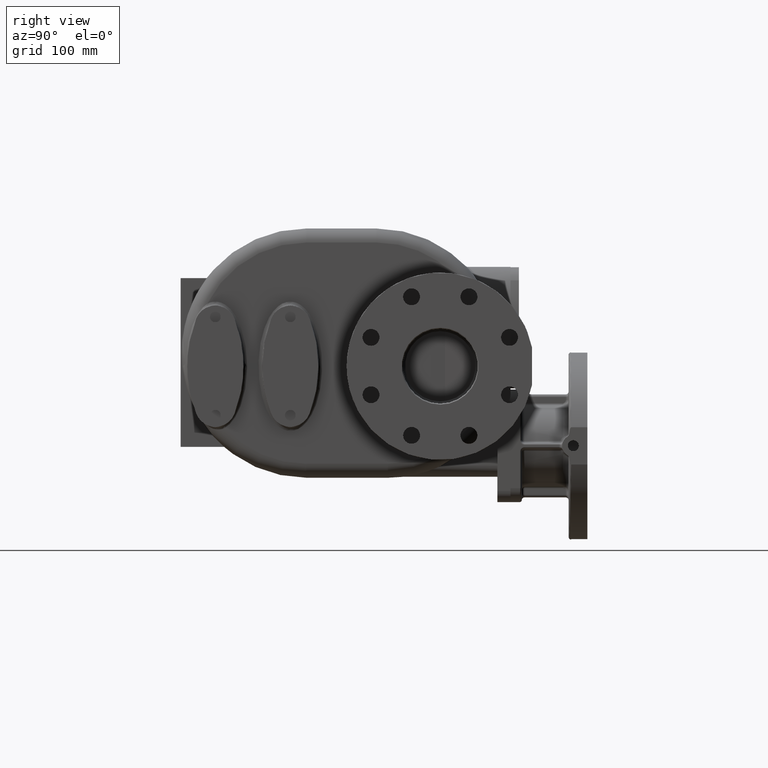
[diagram: clean part render]
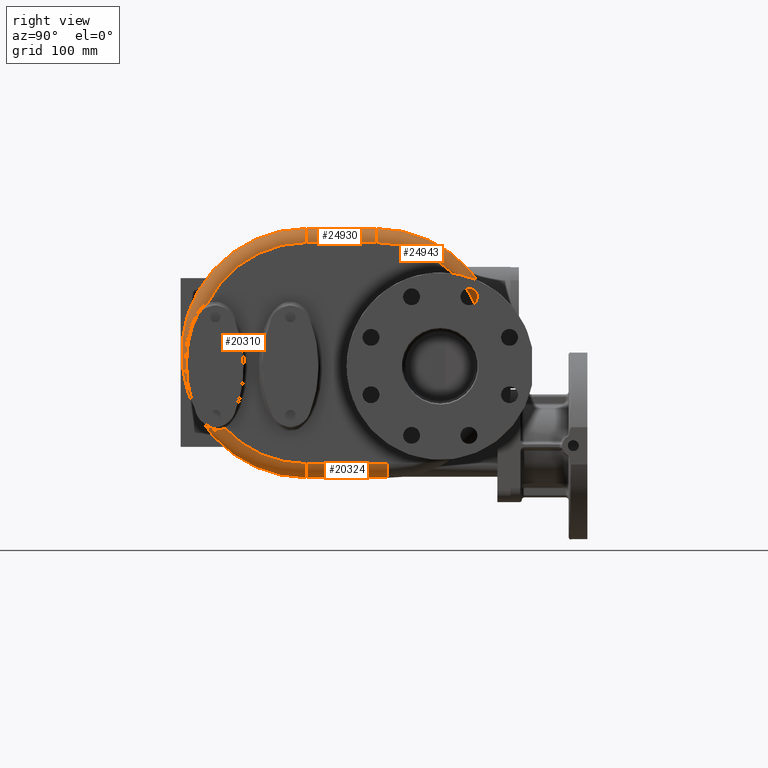
[diagram: same view with one multi-face feature highlighted, each face labeled with its STEP entity id]
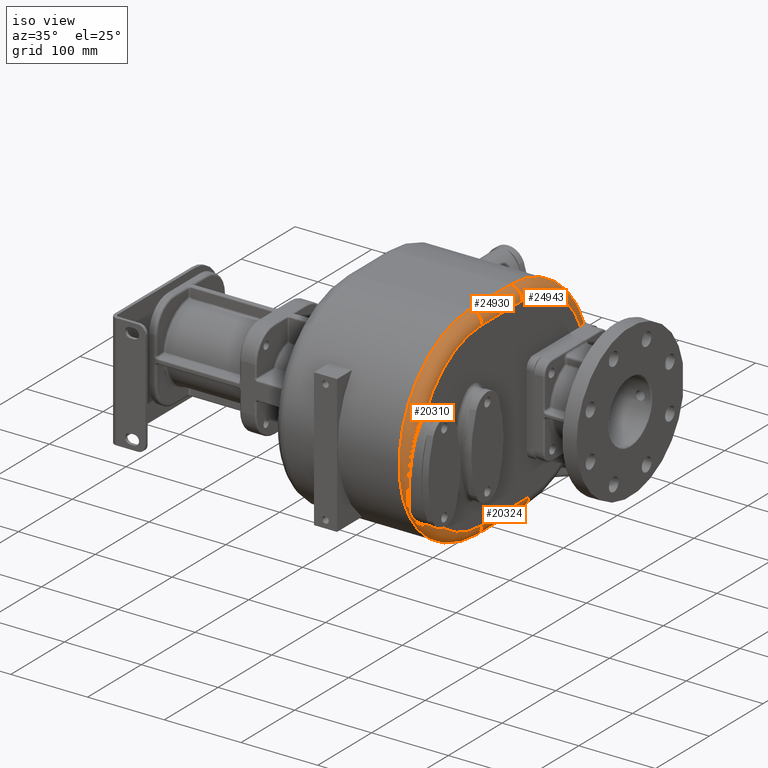
[diagram: same view with one multi-face feature highlighted, each face labeled with its STEP entity id]
A machine part, right view. The highlighted faces form ONE feature: a constant-radius fillet chain: 4 tangent blend faces with common blend radius 15 mm. The faces share edges in the B-rep.
A second angle (iso view) of the same feature is appended — it is thin or edge-on in the first view.
Their STEP definitions:
[1] entity #24943 (Torus):
#474=CARTESIAN_POINT('',(9.5E1,2.088750672767E2,0.E0));
#475=DIRECTION('',(1.E0,0.E0,0.E0));
#476=DIRECTION('',(0.E0,9.597101877962E-1,2.809917355372E-1));
#477=AXIS2_PLACEMENT_3D('',#474,#475,#476);
#2876=CARTESIAN_POINT('',(1.1E2,2.088750672767E2,0.E0));
#2877=DIRECTION('',(1.E0,0.E0,0.E0));
#2878=DIRECTION('',(0.E0,9.208866242174E-1,3.898305084746E-1));
#2879=AXIS2_PLACEMENT_3D('',#2876,#2877,#2878);
#6513=CARTESIAN_POINT('',(9.5E1,2.088750672767E2,1.18E2));
#6514=DIRECTION('',(0.E0,-1.E0,0.E0));
#6515=DIRECTION('',(1.E0,0.E0,0.E0));
#6516=AXIS2_PLACEMENT_3D('',#6513,#6514,#6515);
#6518=CARTESIAN_POINT('',(9.5E1,3.365165222536E2,3.737190082645E1));
#6519=CARTESIAN_POINT('',(9.519163795858E1,3.364660266914E2,3.754436534874E1));
#6520=CARTESIAN_POINT('',(9.557454922347E1,3.363573896027E2,3.788669944325E1));
#6521=CARTESIAN_POINT('',(9.614795274658E1,3.361715922827E2,3.839227091874E1));
#6522=CARTESIAN_POINT('',(9.671841442581E1,3.359637718267E2,3.888792292765E1));
#6523=CARTESIAN_POINT('',(9.728525314604E1,3.357344378555E2,3.937284879968E1));
#6524=CARTESIAN_POINT('',(9.784696542E1,3.354844787849E2,3.984555956345E1));
#6525=CARTESIAN_POINT('',(9.840193937609E1,3.352150220722E2,4.030454867118E1));
#6526=CARTESIAN_POINT('',(9.894962035160E1,3.349267820451E2,4.074922999209E1));
#6527=CARTESIAN_POINT('',(9.948852487304E1,3.346210168009E2,4.117829491274E1));
#6528=CARTESIAN_POINT('',(1.000174633097E2,3.342989905094E2,4.159074814019E1));
#6529=CARTESIAN_POINT('',(1.005360268724E2,3.339615492060E2,4.198624056362E1));
#6530=CARTESIAN_POINT('',(1.010428512541E2,3.336102161596E2,4.236373214174E1));
#6531=CARTESIAN_POINT('',(1.015370876069E2,3.332463156582E2,4.272264991032E1));
#6532=CARTESIAN_POINT('',(1.020185319912E2,3.328707248384E2,4.306291870236E1));
#6533=CARTESIAN_POINT('',(1.024861331328E2,3.324850169183E2,4.338389731942E1));
#6534=CARTESIAN_POINT('',(1.029392297944E2,3.320905838207E2,4.368529433889E1));
#6535=CARTESIAN_POINT('',(1.033779549249E2,3.316881370495E2,4.396737022299E1));
#6536=CARTESIAN_POINT('',(1.038015570681E2,3.312791918812E2,4.422983085536E1));
#6537=CARTESIAN_POINT('',(1.042093366963E2,3.308653606396E2,4.447250386275E1));
#6538=CARTESIAN_POINT('',(1.046017422030E2,3.304471187004E2,4.469593219673E1));
#6539=CARTESIAN_POINT('',(1.049786824557E2,3.300254431390E2,4.490033171805E1));
#6540=CARTESIAN_POINT('',(1.053399957218E2,3.296014183634E2,4.508591024727E1));
#6541=CARTESIAN_POINT('',(1.056855055284E2,3.291762031374E2,4.525291366611E1));
#6542=CARTESIAN_POINT('',(1.060157857827E2,3.287500086937E2,4.540195254413E1));
#6543=CARTESIAN_POINT('',(1.063305286751E2,3.283241409615E2,4.553323020695E1));
#6544=CARTESIAN_POINT('',(1.066299117909E2,3.278993331923E2,4.564721133591E1));
#6545=CARTESIAN_POINT('',(1.069142259003E2,3.274761198718E2,4.574439521215E1));
#6546=CARTESIAN_POINT('',(1.071835379896E2,3.270553780705E2,4.582522165690E1));
#6547=CARTESIAN_POINT('',(1.074385059290E2,3.266370230096E2,4.589029655359E1));
#6548=CARTESIAN_POINT('',(1.076791186667E2,3.262219994504E2,4.594002585381E1));
#6549=CARTESIAN_POINT('',(1.079058066663E2,3.258105362541E2,4.597494193292E1));
#6550=CARTESIAN_POINT('',(1.081190429473E2,3.254026825469E2,4.599553195021E1));
#6551=CARTESIAN_POINT('',(1.082522924428E2,3.251336865768E2,4.6E1));
#6552=CARTESIAN_POINT('',(1.083167298316E2,3.25E2,4.6E1));
#6554=CARTESIAN_POINT('',(1.083167298316E2,3.25E2,4.6E1));
#6555=CARTESIAN_POINT('',(1.084000618930E2,3.248271131366E2,4.6E1));
#6556=CARTESIAN_POINT('',(1.085610528507E2,3.244776990634E2,4.6E1));
#6557=CARTESIAN_POINT('',(1.087855711841E2,3.239420677430E2,4.6E1));
#6558=CARTESIAN_POINT('',(1.089922906122E2,3.233963675469E2,4.6E1));
#6559=CARTESIAN_POINT('',(1.091807717279E2,3.228414194524E2,4.6E1));
#6560=CARTESIAN_POINT('',(1.093508624964E2,3.222771242691E2,4.6E1));
#6561=CARTESIAN_POINT('',(1.095019816089E2,3.217047391620E2,4.6E1));
#6562=CARTESIAN_POINT('',(1.096337062860E2,3.211254504100E2,4.6E1));
#6563=CARTESIAN_POINT('',(1.097459220615E2,3.205391160900E2,4.6E1));
#6564=CARTESIAN_POINT('',(1.098382099026E2,3.199469734487E2,4.6E1));
#6565=CARTESIAN_POINT('',(1.099102540236E2,3.193504830458E2,4.6E1));
#6566=CARTESIAN_POINT('',(1.099619481322E2,3.187497686694E2,4.6E1));
#6567=CARTESIAN_POINT('',(1.099930704114E2,3.181456834863E2,4.6E1));
#6568=CARTESIAN_POINT('',(1.1E2,3.177419267701E2,4.6E1));
#6569=CARTESIAN_POINT('',(1.1E2,3.175396889343E2,4.6E1));
#13461=CARTESIAN_POINT('',(1.1E2,2.088750672767E2,1.18E2));
#13463=VERTEX_POINT('',#13461);
#13465=CARTESIAN_POINT('',(9.5E1,2.088750672767E2,1.33E2));
#13466=VERTEX_POINT('',#13465);
#13467=CARTESIAN_POINT('',(1.1E2,3.175396889343E2,4.6E1));
#13468=VERTEX_POINT('',#13467);
#13469=CARTESIAN_POINT('',(9.5E1,3.365165222536E2,3.737190082645E1));
#13470=VERTEX_POINT('',#13469);
#13471=VERTEX_POINT('',#6552);
#24931=CARTESIAN_POINT('',(9.5E1,2.088750672767E2,0.E0));
#24932=DIRECTION('',(-1.E0,0.E0,0.E0));
#24933=DIRECTION('',(0.E0,9.618450171239E-1,2.735948885377E-1));
#24934=AXIS2_PLACEMENT_3D('',#24931,#24932,#24933);
#24935=TOROIDAL_SURFACE('',#24934,1.18E2,1.5E1);
#24936=ORIENTED_EDGE('',*,*,#19975,.T.);
#24937=ORIENTED_EDGE('',*,*,#24926,.T.);
#24938=ORIENTED_EDGE('',*,*,#15994,.F.);
#24939=ORIENTED_EDGE('',*,*,#16125,.T.);
#24940=ORIENTED_EDGE('',*,*,#16357,.T.);
#24941=EDGE_LOOP('',(#24936,#24937,#24938,#24939,#24940));
#24942=FACE_OUTER_BOUND('',#24941,.F.);
#24943=ADVANCED_FACE('',(#24942),#24935,.T.);
#478=CIRCLE('',#477,1.33E2);
#2880=CIRCLE('',#2879,1.18E2);
#6517=CIRCLE('',#6516,1.5E1);
#6553=B_SPLINE_CURVE_WITH_KNOTS('',3,(#6518,#6519,#6520,#6521,#6522,#6523,#6524,
#6525,#6526,#6527,#6528,#6529,#6530,#6531,#6532,#6533,#6534,#6535,#6536,#6537,
#6538,#6539,#6540,#6541,#6542,#6543,#6544,#6545,#6546,#6547,#6548,#6549,#6550,
#6551,#6552),.UNSPECIFIED.,.F.,.F.,(4,1,1,1,1,1,1,1,1,1,1,1,1,1,1,1,1,1,1,1,1,1,
1,1,1,1,1,1,1,1,1,1,4),(0.E0,3.125E-2,6.25E-2,9.375E-2,1.25E-1,1.5625E-1,
1.875E-1,2.1875E-1,2.5E-1,2.8125E-1,3.125E-1,3.4375E-1,3.75E-1,4.0625E-1,
4.375E-1,4.6875E-1,5.E-1,5.3125E-1,5.625E-1,5.9375E-1,6.25E-1,6.5625E-1,
6.875E-1,7.1875E-1,7.5E-1,7.8125E-1,8.125E-1,8.4375E-1,8.75E-1,9.0625E-1,
9.375E-1,9.6875E-1,1.E0),.UNSPECIFIED.);
#6570=B_SPLINE_CURVE_WITH_KNOTS('',3,(#6554,#6555,#6556,#6557,#6558,#6559,#6560,
#6561,#6562,#6563,#6564,#6565,#6566,#6567,#6568,#6569),.UNSPECIFIED.,.F.,.F.,(4,
1,1,1,1,1,1,1,1,1,1,1,1,4),(0.E0,7.692307692308E-2,1.538461538462E-1,
2.307692307692E-1,3.076923076923E-1,3.846153846154E-1,4.615384615385E-1,
5.384615384615E-1,6.153846153846E-1,6.923076923077E-1,7.692307692308E-1,
8.461538461538E-1,9.230769230769E-1,1.E0),.UNSPECIFIED.);
#15994=EDGE_CURVE('',#13470,#13466,#478,.T.);
#16125=EDGE_CURVE('',#13470,#13471,#6553,.T.);
#16357=EDGE_CURVE('',#13471,#13468,#6570,.T.);
#19975=EDGE_CURVE('',#13468,#13463,#2880,.T.);
#24926=EDGE_CURVE('',#13463,#13466,#6517,.T.);
[2] entity #24930 (Cylinder):
#2872=DIRECTION('',(0.E0,-1.E0,0.E0));
#2873=VECTOR('',#2872,7.487506727666E1);
#2874=CARTESIAN_POINT('',(1.1E2,2.088750672767E2,1.18E2));
#2875=LINE('',#2874,#2873);
#3271=CARTESIAN_POINT('',(9.5E1,1.34E2,1.18E2));
#3272=DIRECTION('',(0.E0,-1.E0,0.E0));
#3273=DIRECTION('',(1.E0,0.E0,0.E0));
#3274=AXIS2_PLACEMENT_3D('',#3271,#3272,#3273);
#6505=DIRECTION('',(0.E0,-1.E0,0.E0));
#6506=VECTOR('',#6505,7.487506727662E1);
#6507=CARTESIAN_POINT('',(9.5E1,2.088750672767E2,1.33E2));
#6508=LINE('',#6507,#6506);
#6513=CARTESIAN_POINT('',(9.5E1,2.088750672767E2,1.18E2));
#6514=DIRECTION('',(0.E0,-1.E0,0.E0));
#6515=DIRECTION('',(1.E0,0.E0,0.E0));
#6516=AXIS2_PLACEMENT_3D('',#6513,#6514,#6515);
#13459=CARTESIAN_POINT('',(9.5E1,1.34E2,1.33E2));
#13460=VERTEX_POINT('',#13459);
#13461=CARTESIAN_POINT('',(1.1E2,2.088750672767E2,1.18E2));
#13462=CARTESIAN_POINT('',(1.1E2,1.34E2,1.18E2));
#13463=VERTEX_POINT('',#13461);
#13464=VERTEX_POINT('',#13462);
#13465=CARTESIAN_POINT('',(9.5E1,2.088750672767E2,1.33E2));
#13466=VERTEX_POINT('',#13465);
#24918=CARTESIAN_POINT('',(9.5E1,2.098990043348E2,1.18E2));
#24919=DIRECTION('',(0.E0,-1.E0,0.E0));
#24920=DIRECTION('',(1.E0,0.E0,0.E0));
#24921=AXIS2_PLACEMENT_3D('',#24918,#24919,#24920);
#24922=CYLINDRICAL_SURFACE('',#24921,1.5E1);
#24923=ORIENTED_EDGE('',*,*,#19973,.T.);
#24924=ORIENTED_EDGE('',*,*,#20303,.T.);
#24925=ORIENTED_EDGE('',*,*,#24911,.F.);
#24927=ORIENTED_EDGE('',*,*,#24926,.F.);
#24928=EDGE_LOOP('',(#24923,#24924,#24925,#24927));
#24929=FACE_OUTER_BOUND('',#24928,.F.);
#24930=ADVANCED_FACE('',(#24929),#24922,.T.);
#3275=CIRCLE('',#3274,1.5E1);
#6517=CIRCLE('',#6516,1.5E1);
#19973=EDGE_CURVE('',#13463,#13464,#2875,.T.);
#20303=EDGE_CURVE('',#13464,#13460,#3275,.T.);
#24911=EDGE_CURVE('',#13466,#13460,#6508,.T.);
#24926=EDGE_CURVE('',#13463,#13466,#6517,.T.);
[3] entity #20310 (Torus):
#2865=CARTESIAN_POINT('',(1.099999968321E2,2.854941796201E1,5.295498208904E1));
#2867=CARTESIAN_POINT('',(1.1E2,1.34E2,0.E0));
#2868=DIRECTION('',(1.E0,0.E0,0.E0));
#2869=DIRECTION('',(0.E0,0.E0,1.E0));
#2870=AXIS2_PLACEMENT_3D('',#2867,#2868,#2869);
#2890=CARTESIAN_POINT('',(1.1E2,1.34E2,0.E0));
#2891=DIRECTION('',(1.E0,0.E0,0.E0));
#2892=DIRECTION('',(0.E0,-7.353211135372E-1,-6.777188650071E-1));
#2893=AXIS2_PLACEMENT_3D('',#2890,#2891,#2892);
#2895=CARTESIAN_POINT('',(1.099999543372E2,4.723210860638E1,-7.997082607466E1));
#3248=CARTESIAN_POINT('',(1.079149421773E2,3.854579071676E1,-8.167731309802E1));
#3249=CARTESIAN_POINT('',(1.079897949988E2,3.872993324850E1,-8.169761679331E1));
#3250=CARTESIAN_POINT('',(1.081352500198E2,3.909453872647E1,-8.173120300626E1));
#3251=CARTESIAN_POINT('',(1.083404899019E2,3.962974912810E1,-8.176155064838E1));
#3252=CARTESIAN_POINT('',(1.085330286433E2,4.015364092347E1,-8.177287008109E1));
#3253=CARTESIAN_POINT('',(1.087130223685E2,4.066645585732E1,-8.176617161015E1));
#3254=CARTESIAN_POINT('',(1.088806816907E2,4.116853132699E1,-8.174230818800E1));
#3255=CARTESIAN_POINT('',(1.090361280662E2,4.166003728225E1,-8.170216415885E1));
#3256=CARTESIAN_POINT('',(1.091795335776E2,4.214123041396E1,-8.164647428566E1));
#3257=CARTESIAN_POINT('',(1.093110655642E2,4.261248063496E1,-8.157600314208E1));
#3258=CARTESIAN_POINT('',(1.094308955891E2,4.307416591645E1,-8.149135255774E1));
#3259=CARTESIAN_POINT('',(1.095391410393E2,4.352658791554E1,-8.139314359606E1));
#3260=CARTESIAN_POINT('',(1.096359146895E2,4.397009038756E1,-8.128192135524E1));
#3261=CARTESIAN_POINT('',(1.097212913245E2,4.440490410809E1,-8.115815773866E1));
#3262=CARTESIAN_POINT('',(1.097953243939E2,4.483130163508E1,-8.102237745890E1));
#3263=CARTESIAN_POINT('',(1.098580888305E2,4.524973266349E1,-8.087487733268E1));
#3264=CARTESIAN_POINT('',(1.099096211668E2,4.566081640580E1,-8.071591898249E1));
#3265=CARTESIAN_POINT('',(1.099498667365E2,4.606475232610E1,-8.054580537908E1));
#3266=CARTESIAN_POINT('',(1.099787193561E2,4.646146113465E1,-8.036492373336E1));
#3267=CARTESIAN_POINT('',(1.099961354777E2,4.685096834644E1,-8.017368568143E1));
#3268=CARTESIAN_POINT('',(1.099999548054E2,4.710587665758E1,-8.003950888655E1));
#3269=CARTESIAN_POINT('',(1.099999543372E2,4.723210860638E1,-7.997082607466E1));
#3271=CARTESIAN_POINT('',(9.5E1,1.34E2,1.18E2));
#3272=DIRECTION('',(0.E0,-1.E0,0.E0));
#3273=DIRECTION('',(1.E0,0.E0,0.E0));
#3274=AXIS2_PLACEMENT_3D('',#3271,#3272,#3273);
#3276=CARTESIAN_POINT('',(1.099999968321E2,2.854941796201E1,5.295498208904E1));
#3277=CARTESIAN_POINT('',(1.100000134998E2,2.835316664937E1,5.282956656615E1));
#3278=CARTESIAN_POINT('',(1.099971587277E2,2.795793976020E1,5.256768140155E1));
#3279=CARTESIAN_POINT('',(1.099846295436E2,2.735534771317E1,5.214204110849E1));
#3280=CARTESIAN_POINT('',(1.099640074941E2,2.674294766801E1,5.168027092209E1));
#3281=CARTESIAN_POINT('',(1.099354791951E2,2.611988943082E1,5.118003767492E1));
#3282=CARTESIAN_POINT('',(1.098992291992E2,2.548600346781E1,5.063874448685E1));
#3283=CARTESIAN_POINT('',(1.098554424202E2,2.484081833294E1,5.005331215967E1));
#3284=CARTESIAN_POINT('',(1.098043216589E2,2.418406782779E1,4.942044962757E1));
#3285=CARTESIAN_POINT('',(1.097460953403E2,2.351574475143E1,4.873697575795E1));
#3286=CARTESIAN_POINT('',(1.096810094529E2,2.283599429479E1,4.799971547537E1));
#3287=CARTESIAN_POINT('',(1.096093485488E2,2.214552119710E1,4.720620097528E1));
#3288=CARTESIAN_POINT('',(1.095315023953E2,2.144582458251E1,4.635474143582E1));
#3289=CARTESIAN_POINT('',(1.094480070869E2,2.073849957681E1,4.544281567396E1));
#3290=CARTESIAN_POINT('',(1.093593080882E2,2.002437357994E1,4.446717712550E1));
#3291=CARTESIAN_POINT('',(1.092658307218E2,1.930429348830E1,4.342452615130E1));
#3292=CARTESIAN_POINT('',(1.091679566343E2,1.857945720835E1,4.231244895863E1));
#3293=CARTESIAN_POINT('',(1.090661342409E2,1.785159594990E1,4.112898561802E1));
#3294=CARTESIAN_POINT('',(1.089609497419E2,1.712250473550E1,3.987100163132E1));
#3295=CARTESIAN_POINT('',(1.088527816133E2,1.639330534926E1,3.853458143421E1));
#3296=CARTESIAN_POINT('',(1.087419279814E2,1.566541850921E1,3.711627856810E1));
#3297=CARTESIAN_POINT('',(1.086287098563E2,1.494185048926E1,3.561660949650E1));
#3298=CARTESIAN_POINT('',(1.085136937515E2,1.422596268130E1,3.403527917892E1));
#3299=CARTESIAN_POINT('',(1.083971294370E2,1.351983774987E1,3.236954701905E1));
#3300=CARTESIAN_POINT('',(1.082790640687E2,1.282557875331E1,3.061698881989E1));
#3301=CARTESIAN_POINT('',(1.081591955334E2,1.214510830461E1,2.877561796165E1));
#3302=CARTESIAN_POINT('',(1.080374676953E2,1.148116949769E1,2.684305135980E1));
#3303=CARTESIAN_POINT('',(1.079138957546E2,1.083767049488E1,2.482027336324E1));
#3304=CARTESIAN_POINT('',(1.077881589903E2,1.021810729054E1,2.270858251238E1));
#3305=CARTESIAN_POINT('',(1.076595264665E2,9.625529907349E0,2.050948321391E1));
#3306=CARTESIAN_POINT('',(1.075275809057E2,9.063771212637E0,1.822493314615E1));
#3307=CARTESIAN_POINT('',(1.073918036168E2,8.536918818585E0,1.585952203550E1));
#3308=CARTESIAN_POINT('',(1.072513096553E2,8.048411553964E0,1.341791998880E1));
#3309=CARTESIAN_POINT('',(1.071049189037E2,7.601225008345E0,1.090475348919E1));
#3310=CARTESIAN_POINT('',(1.069518620310E2,7.198954752628E0,8.326285981737E0));
#3311=CARTESIAN_POINT('',(1.067911987787E2,6.844754144147E0,5.690479465267E0));
#3312=CARTESIAN_POINT('',(1.066217262244E2,6.541032737843E0,3.005227532360E0));
#3313=CARTESIAN_POINT('',(1.064421796669E2,6.289760131036E0,2.784704989680E-1));
#3314=CARTESIAN_POINT('',(1.062517001691E2,6.092951046978E0,-2.480808892410E0));
#3315=CARTESIAN_POINT('',(1.060493179941E2,5.951896537566E0,-5.263223814640E0));
#3316=CARTESIAN_POINT('',(1.058339878866E2,5.867211551783E0,-8.059378008124E0));
#3317=CARTESIAN_POINT('',(1.056048235936E2,5.839069967176E0,-1.085985781864E1));
#3318=CARTESIAN_POINT('',(1.053612294759E2,5.867387150527E0,-1.365616473016E1));
#3319=CARTESIAN_POINT('',(1.051026217639E2,5.951500022901E0,-1.643986500484E1));
#3320=CARTESIAN_POINT('',(1.048285092835E2,6.090197717317E0,-1.920232400274E1));
#3321=CARTESIAN_POINT('',(1.045386965225E2,6.282084004247E0,-2.193609331906E1));
#3322=CARTESIAN_POINT('',(1.042330910720E2,6.525587733357E0,-2.463527349903E1));
#3323=CARTESIAN_POINT('',(1.039117094236E2,6.818706214589E0,-2.729358043591E1));
#3324=CARTESIAN_POINT('',(1.035748037712E2,7.159334845801E0,-2.990569462767E1));
#3325=CARTESIAN_POINT('',(1.032227276997E2,7.545661076667E0,-3.246879462623E1));
#3326=CARTESIAN_POINT('',(1.028558446504E2,7.975585207072E0,-3.497974358513E1));
#3327=CARTESIAN_POINT('',(1.024748780159E2,8.447120938364E0,-3.743590135518E1));
#3328=CARTESIAN_POINT('',(1.020810046491E2,8.958662207051E0,-3.983575158337E1));
#3329=CARTESIAN_POINT('',(1.016753581398E2,9.508020000508E0,-4.217684613867E1));
#3330=CARTESIAN_POINT('',(1.012591738286E2,1.009442121296E1,-4.446123918523E1));
#3331=CARTESIAN_POINT('',(1.008339390474E2,1.071804826340E1,-4.669334272810E1));
#3332=CARTESIAN_POINT('',(1.003998045919E2,1.138014373620E1,-4.887985696978E1));
#3333=CARTESIAN_POINT('',(9.997403772003E1,1.206305709337E1,-5.096510326674E1));
#3334=CARTESIAN_POINT('',(9.957618570637E1,1.273891929757E1,-5.288454734034E1));
#3335=CARTESIAN_POINT('',(9.922025956818E1,1.338398761309E1,-5.460162105078E1));
#3336=CARTESIAN_POINT('',(9.891188741317E1,1.399281693209E1,-5.612956861762E1));
#3337=CARTESIAN_POINT('',(9.865297453643E1,1.455469709281E1,-5.746899193262E1));
#3338=CARTESIAN_POINT('',(9.844100869560E1,1.506587602833E1,-5.863460396584E1));
#3339=CARTESIAN_POINT('',(9.827419751297E1,1.553628062129E1,-5.966332467555E1));
#3340=CARTESIAN_POINT('',(9.814662963665E1,1.597501694370E1,-6.058707587688E1));
#3341=CARTESIAN_POINT('',(9.805198006334E1,1.639488141842E1,-6.144085110228E1));
#3342=CARTESIAN_POINT('',(9.798681089634E1,1.680555384491E1,-6.224885226598E1));
#3343=CARTESIAN_POINT('',(9.794933557865E1,1.720351339746E1,-6.300802002279E1));
#3344=CARTESIAN_POINT('',(9.793682871542E1,1.758675360491E1,-6.371831124396E1));
#3345=CARTESIAN_POINT('',(9.794678147257E1,1.795818054535E1,-6.438802993675E1));
#3346=CARTESIAN_POINT('',(9.797785975640E1,1.832293349612E1,-6.502821857770E1));
#3347=CARTESIAN_POINT('',(9.803005507075E1,1.868621792475E1,-6.564872721585E1));
#3348=CARTESIAN_POINT('',(9.810520672106E1,1.905607173101E1,-6.626284089395E1));
#3349=CARTESIAN_POINT('',(9.820406177648E1,1.944096212557E1,-6.688409564063E1));
#3350=CARTESIAN_POINT('',(9.832957528153E1,1.985057811788E1,-6.752610330714E1));
#3351=CARTESIAN_POINT('',(9.848377288119E1,2.028834394330E1,-6.819116704427E1));
#3352=CARTESIAN_POINT('',(9.866831439177E1,2.075686146575E1,-6.887971599676E1));
#3353=CARTESIAN_POINT('',(9.888453869020E1,2.125859354807E1,-6.959135776319E1));
#3354=CARTESIAN_POINT('',(9.913214491699E1,2.179267403799E1,-7.032055531191E1));
#3355=CARTESIAN_POINT('',(9.941133209668E1,2.235934905195E1,-7.106297931206E1));
#3356=CARTESIAN_POINT('',(9.972010679066E1,2.295648288175E1,-7.181149342784E1));
#3357=CARTESIAN_POINT('',(1.000552380298E2,2.358155809437E1,-7.255932862963E1));
#3358=CARTESIAN_POINT('',(1.004117905933E2,2.423060494562E1,-7.329917913310E1));
#3359=CARTESIAN_POINT('',(1.007857786279E2,2.489885913891E1,-7.402285469104E1));
#3360=CARTESIAN_POINT('',(1.011724378368E2,2.558083188704E1,-7.472266746405E1));
#3361=CARTESIAN_POINT('',(1.015670391260E2,2.627153796377E1,-7.539290401584E1));
#3362=CARTESIAN_POINT('',(1.019664116367E2,2.696825156511E1,-7.603083414546E1));
#3363=CARTESIAN_POINT('',(1.023671928256E2,2.766741793006E1,-7.663344546515E1));
#3364=CARTESIAN_POINT('',(1.027661616496E2,2.836577411498E1,-7.719888780435E1));
#3365=CARTESIAN_POINT('',(1.031614723292E2,2.906200260040E1,-7.772726184074E1));
#3366=CARTESIAN_POINT('',(1.035513421605E2,2.975435975892E1,-7.821836389774E1));
#3367=CARTESIAN_POINT('',(1.039341266264E2,3.044129667911E1,-7.867250040261E1));
#3368=CARTESIAN_POINT('',(1.043086819610E2,3.112186676469E1,-7.909048228019E1));
#3369=CARTESIAN_POINT('',(1.046739079854E2,3.179494889614E1,-7.947304912286E1));
#3370=CARTESIAN_POINT('',(1.050288764802E2,3.245966289779E1,-7.982125209509E1));
#3371=CARTESIAN_POINT('',(1.053729986265E2,3.311552015210E1,-8.013631360274E1));
#3372=CARTESIAN_POINT('',(1.057057376043E2,3.376199584571E1,-8.041941542751E1));
#3373=CARTESIAN_POINT('',(1.060265873225E2,3.439857020312E1,-8.067179715915E1));
#3374=CARTESIAN_POINT('',(1.063350867516E2,3.502460850208E1,-8.089458902403E1));
#3375=CARTESIAN_POINT('',(1.066307899858E2,3.563942197078E1,-8.108896536509E1));
#3376=CARTESIAN_POINT('',(1.069135480276E2,3.624284410946E1,-8.125629158302E1));
#3377=CARTESIAN_POINT('',(1.071834492943E2,3.683508428964E1,-8.139789279658E1));
#3378=CARTESIAN_POINT('',(1.074405666819E2,3.741637416584E1,-8.151506929698E1));
#3379=CARTESIAN_POINT('',(1.076850197444E2,3.798699743083E1,-8.160900809558E1));
#3380=CARTESIAN_POINT('',(1.078397157894E2,3.836072455103E1,-8.165690527887E1));
#3381=CARTESIAN_POINT('',(1.079149421773E2,3.854579071676E1,-8.167731309802E1));
#3383=CARTESIAN_POINT('',(9.5E1,1.34E2,-1.18E2));
#3384=DIRECTION('',(0.E0,1.E0,0.E0));
#3385=DIRECTION('',(1.E0,0.E0,0.E0));
#3386=AXIS2_PLACEMENT_3D('',#3383,#3384,#3385);
#6576=CARTESIAN_POINT('',(9.5E1,1.34E2,0.E0));
#6577=DIRECTION('',(1.E0,0.E0,0.E0));
#6578=DIRECTION('',(0.E0,0.E0,1.E0));
#6579=AXIS2_PLACEMENT_3D('',#6576,#6577,#6578);
#13455=CARTESIAN_POINT('',(1.1E2,1.34E2,-1.18E2));
#13456=VERTEX_POINT('',#13455);
#13457=CARTESIAN_POINT('',(9.5E1,1.34E2,-1.33E2));
#13458=VERTEX_POINT('',#13457);
#13459=CARTESIAN_POINT('',(9.5E1,1.34E2,1.33E2));
#13460=VERTEX_POINT('',#13459);
#13462=CARTESIAN_POINT('',(1.1E2,1.34E2,1.18E2));
#13464=VERTEX_POINT('',#13462);
#13538=VERTEX_POINT('',#2865);
#13540=VERTEX_POINT('',#2895);
#13542=VERTEX_POINT('',#3248);
#20292=CARTESIAN_POINT('',(9.5E1,1.34E2,0.E0));
#20293=DIRECTION('',(-1.E0,0.E0,0.E0));
#20294=DIRECTION('',(0.E0,7.698698820877E-3,9.999703645791E-1));
#20295=AXIS2_PLACEMENT_3D('',#20292,#20293,#20294);
#20296=TOROIDAL_SURFACE('',#20295,1.18E2,1.5E1);
#20297=ORIENTED_EDGE('',*,*,#20282,.T.);
#20298=ORIENTED_EDGE('',*,*,#19987,.T.);
#20300=ORIENTED_EDGE('',*,*,#20299,.T.);
#20302=ORIENTED_EDGE('',*,*,#20301,.F.);
#20304=ORIENTED_EDGE('',*,*,#20303,.F.);
#20305=ORIENTED_EDGE('',*,*,#19971,.T.);
#20307=ORIENTED_EDGE('',*,*,#20306,.T.);
#20308=EDGE_LOOP('',(#20297,#20298,#20300,#20302,#20304,#20305,#20307));
#20309=FACE_OUTER_BOUND('',#20308,.F.);
#20310=ADVANCED_FACE('',(#20309),#20296,.T.);
#2871=CIRCLE('',#2870,1.18E2);
#2894=CIRCLE('',#2893,1.18E2);
#3270=B_SPLINE_CURVE_WITH_KNOTS('',3,(#3248,#3249,#3250,#3251,#3252,#3253,#3254,
#3255,#3256,#3257,#3258,#3259,#3260,#3261,#3262,#3263,#3264,#3265,#3266,#3267,
#3268,#3269),.UNSPECIFIED.,.F.,.F.,(4,1,1,1,1,1,1,1,1,1,1,1,1,1,1,1,1,1,1,4),(
0.E0,5.263157894737E-2,1.052631578947E-1,1.578947368421E-1,2.105263157895E-1,
2.631578947368E-1,3.157894736842E-1,3.684210526316E-1,4.210526315789E-1,
4.736842105263E-1,5.263157894737E-1,5.789473684211E-1,6.315789473684E-1,
6.842105263158E-1,7.368421052632E-1,7.894736842105E-1,8.421052631579E-1,
8.947368421053E-1,9.473684210526E-1,1.E0),.UNSPECIFIED.);
#3275=CIRCLE('',#3274,1.5E1);
#3382=B_SPLINE_CURVE_WITH_KNOTS('',3,(#3276,#3277,#3278,#3279,#3280,#3281,#3282,
#3283,#3284,#3285,#3286,#3287,#3288,#3289,#3290,#3291,#3292,#3293,#3294,#3295,
#3296,#3297,#3298,#3299,#3300,#3301,#3302,#3303,#3304,#3305,#3306,#3307,#3308,
#3309,#3310,#3311,#3312,#3313,#3314,#3315,#3316,#3317,#3318,#3319,#3320,#3321,
#3322,#3323,#3324,#3325,#3326,#3327,#3328,#3329,#3330,#3331,#3332,#3333,#3334,
#3335,#3336,#3337,#3338,#3339,#3340,#3341,#3342,#3343,#3344,#3345,#3346,#3347,
#3348,#3349,#3350,#3351,#3352,#3353,#3354,#3355,#3356,#3357,#3358,#3359,#3360,
#3361,#3362,#3363,#3364,#3365,#3366,#3367,#3368,#3369,#3370,#3371,#3372,#3373,
#3374,#3375,#3376,#3377,#3378,#3379,#3380,#3381),.UNSPECIFIED.,.F.,.F.,(4,1,1,1,
1,1,1,1,1,1,1,1,1,1,1,1,1,1,1,1,1,1,1,1,1,1,1,1,1,1,1,1,1,1,1,1,1,1,1,1,1,1,1,1,
1,1,1,1,1,1,1,1,1,1,1,1,1,1,1,1,1,1,1,1,1,1,1,1,1,1,1,1,1,1,1,1,1,1,1,1,1,1,1,1,
1,1,1,1,1,1,1,1,1,1,1,1,1,1,1,1,1,1,1,4),(0.E0,9.708737864078E-3,
1.941747572816E-2,2.912621359223E-2,3.883495145631E-2,4.854368932039E-2,
5.825242718447E-2,6.796116504854E-2,7.766990291262E-2,8.737864077670E-2,
9.708737864078E-2,1.067961165049E-1,1.165048543689E-1,1.262135922330E-1,
1.359223300971E-1,1.456310679612E-1,1.553398058252E-1,1.650485436893E-1,
1.747572815534E-1,1.844660194175E-1,1.941747572816E-1,2.038834951456E-1,
2.135922330097E-1,2.233009708738E-1,2.330097087379E-1,2.427184466019E-1,
2.524271844660E-1,2.621359223301E-1,2.718446601942E-1,2.815533980583E-1,
2.912621359223E-1,3.009708737864E-1,3.106796116505E-1,3.203883495146E-1,
3.300970873786E-1,3.398058252427E-1,3.495145631068E-1,3.592233009709E-1,
3.689320388350E-1,3.786407766990E-1,3.883495145631E-1,3.980582524272E-1,
4.077669902913E-1,4.174757281553E-1,4.271844660194E-1,4.368932038835E-1,
4.466019417476E-1,4.563106796117E-1,4.660194174757E-1,4.757281553398E-1,
4.854368932039E-1,4.951456310680E-1,5.048543689320E-1,5.145631067961E-1,
5.242718446602E-1,5.339805825243E-1,5.436893203883E-1,5.533980582524E-1,
5.631067961165E-1,5.728155339806E-1,5.825242718447E-1,5.922330097087E-1,
6.019417475728E-1,6.116504854369E-1,6.213592233010E-1,6.310679611650E-1,
6.407766990291E-1,6.504854368932E-1,6.601941747573E-1,6.699029126214E-1,
6.796116504854E-1,6.893203883495E-1,6.990291262136E-1,7.087378640777E-1,
7.184466019417E-1,7.281553398058E-1,7.378640776699E-1,7.475728155340E-1,
7.572815533981E-1,7.669902912621E-1,7.766990291262E-1,7.864077669903E-1,
7.961165048544E-1,8.058252427184E-1,8.155339805825E-1,8.252427184466E-1,
8.349514563107E-1,8.446601941748E-1,8.543689320388E-1,8.640776699029E-1,
8.737864077670E-1,8.834951456311E-1,8.932038834951E-1,9.029126213592E-1,
9.126213592233E-1,9.223300970874E-1,9.320388349515E-1,9.417475728155E-1,
9.514563106796E-1,9.611650485437E-1,9.708737864078E-1,9.805825242718E-1,
9.902912621359E-1,1.E0),.UNSPECIFIED.);
#3387=CIRCLE('',#3386,1.5E1);
#6580=CIRCLE('',#6579,1.33E2);
#19971=EDGE_CURVE('',#13464,#13538,#2871,.T.);
#19987=EDGE_CURVE('',#13540,#13456,#2894,.T.);
#20282=EDGE_CURVE('',#13542,#13540,#3270,.T.);
#20299=EDGE_CURVE('',#13456,#13458,#3387,.T.);
#20301=EDGE_CURVE('',#13460,#13458,#6580,.T.);
#20303=EDGE_CURVE('',#13464,#13460,#3275,.T.);
#20306=EDGE_CURVE('',#13538,#13542,#3382,.T.);
[4] entity #20324 (Cylinder):
#2886=DIRECTION('',(0.E0,1.E0,0.E0));
#2887=VECTOR('',#2886,8.709138630508E1);
#2888=CARTESIAN_POINT('',(1.1E2,1.34E2,-1.18E2));
#2889=LINE('',#2888,#2887);
#3383=CARTESIAN_POINT('',(9.5E1,1.34E2,-1.18E2));
#3384=DIRECTION('',(0.E0,1.E0,0.E0));
#3385=DIRECTION('',(1.E0,0.E0,0.E0));
#3386=AXIS2_PLACEMENT_3D('',#3383,#3384,#3385);
#3388=CARTESIAN_POINT('',(9.5E1,2.210913863051E2,-1.18E2));
#3389=DIRECTION('',(0.E0,1.E0,0.E0));
#3390=DIRECTION('',(1.E0,0.E0,0.E0));
#3391=AXIS2_PLACEMENT_3D('',#3388,#3389,#3390);
#6617=DIRECTION('',(0.E0,1.E0,0.E0));
#6618=VECTOR('',#6617,8.709138630482E1);
#6619=CARTESIAN_POINT('',(9.5E1,1.34E2,-1.33E2));
#6620=LINE('',#6619,#6618);
#13447=CARTESIAN_POINT('',(9.5E1,2.210913863051E2,-1.33E2));
#13449=VERTEX_POINT('',#13447);
#13451=CARTESIAN_POINT('',(1.1E2,2.210913863051E2,-1.18E2));
#13453=VERTEX_POINT('',#13451);
#13455=CARTESIAN_POINT('',(1.1E2,1.34E2,-1.18E2));
#13456=VERTEX_POINT('',#13455);
#13457=CARTESIAN_POINT('',(9.5E1,1.34E2,-1.33E2));
#13458=VERTEX_POINT('',#13457);
#20311=CARTESIAN_POINT('',(9.5E1,1.329760629419E2,-1.18E2));
#20312=DIRECTION('',(0.E0,1.E0,0.E0));
#20313=DIRECTION('',(1.E0,0.E0,0.E0));
#20314=AXIS2_PLACEMENT_3D('',#20311,#20312,#20313);
#20315=CYLINDRICAL_SURFACE('',#20314,1.5E1);
#20316=ORIENTED_EDGE('',*,*,#19985,.T.);
#20318=ORIENTED_EDGE('',*,*,#20317,.T.);
#20320=ORIENTED_EDGE('',*,*,#20319,.F.);
#20321=ORIENTED_EDGE('',*,*,#20299,.F.);
#20322=EDGE_LOOP('',(#20316,#20318,#20320,#20321));
#20323=FACE_OUTER_BOUND('',#20322,.F.);
#20324=ADVANCED_FACE('',(#20323),#20315,.T.);
#3387=CIRCLE('',#3386,1.5E1);
#3392=CIRCLE('',#3391,1.5E1);
#19985=EDGE_CURVE('',#13456,#13453,#2889,.T.);
#20299=EDGE_CURVE('',#13456,#13458,#3387,.T.);
#20317=EDGE_CURVE('',#13453,#13449,#3392,.T.);
#20319=EDGE_CURVE('',#13458,#13449,#6620,.T.);